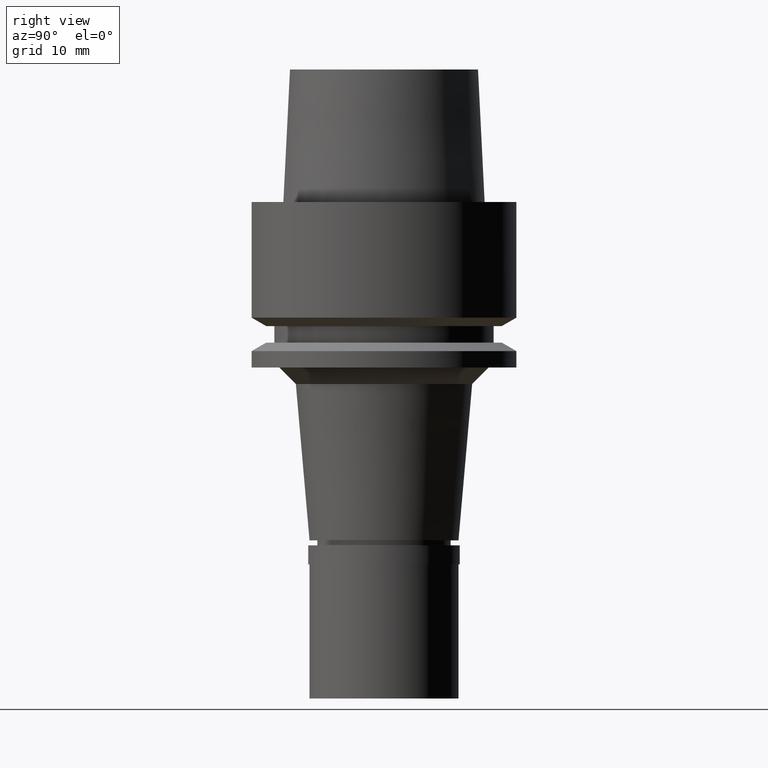
[diagram: clean part render]
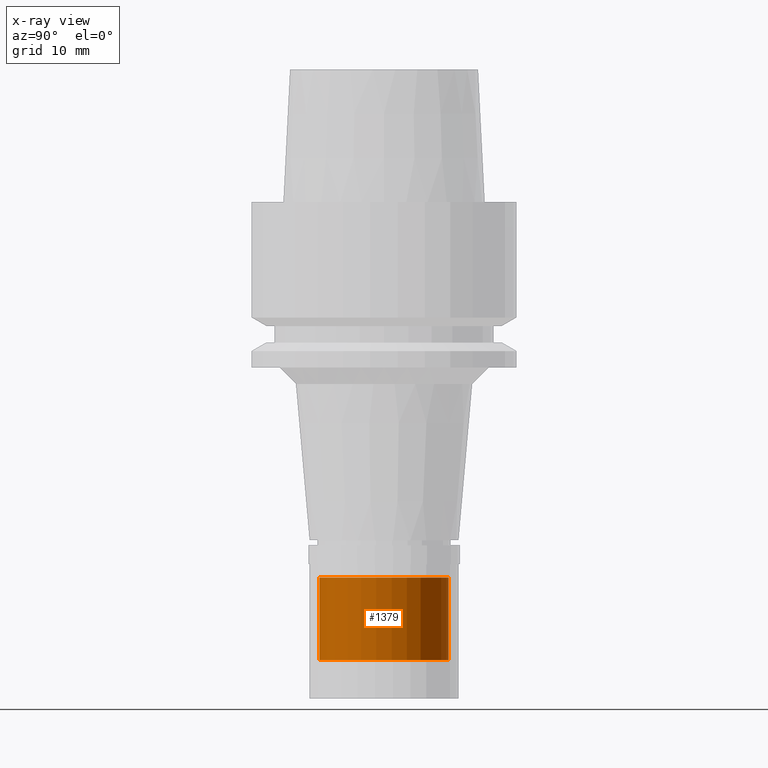
[diagram: x-ray — body ghosted, one internal face saturated and labeled with its STEP entity id]
A machine part, right view, then the same camera in x-ray: the body is ghosted and one INTERNAL B-rep face — a face not visible from any outside direction — is saturated and labeled: STEP entity #1379.
In plain terms, the highlighted cylindrical surface (partial cylindrical patch) has radius 7.8 mm, axis along (0, 0, -1).
Its self-contained STEP definition (entity closure, byte-faithful):
#30 = CIRCLE ( 'NONE', #2075, 7.799999999999999822 ) ;
#63 = AXIS2_PLACEMENT_3D ( 'NONE', #521, #2627, #344 ) ;
#250 = CARTESIAN_POINT ( 'NONE',  ( 0.0000000000000000000, 7.799999999999999822, -55.39999999999999858 ) ) ;
#325 = CARTESIAN_POINT ( 'NONE',  ( 0.0000000000000000000, -7.799999999999999822, -45.40000000000000568 ) ) ;
#340 = DIRECTION ( 'NONE',  ( 0.0000000000000000000, 0.0000000000000000000, -1.000000000000000000 ) ) ;
#344 = DIRECTION ( 'NONE',  ( 0.0000000000000000000, -1.000000000000000000, 0.0000000000000000000 ) ) ;
#372 = DIRECTION ( 'NONE',  ( 0.0000000000000000000, -1.000000000000000000, 0.0000000000000000000 ) ) ;
#387 = EDGE_CURVE ( 'NONE', #1405, #795, #1224, .T. ) ;
#399 = DIRECTION ( 'NONE',  ( 0.0000000000000000000, 0.0000000000000000000, -1.000000000000000000 ) ) ;
#521 = CARTESIAN_POINT ( 'NONE',  ( 0.0000000000000000000, 0.0000000000000000000, -55.39999999999999858 ) ) ;
#582 = CARTESIAN_POINT ( 'NONE',  ( 0.0000000000000000000, -7.799999999999999822, -45.40000000000000568 ) ) ;
#670 = AXIS2_PLACEMENT_3D ( 'NONE', #1827, #399, #372 ) ;
#730 = EDGE_CURVE ( 'NONE', #795, #2525, #1452, .T. ) ;
#795 = VERTEX_POINT ( 'NONE', #2443 ) ;
#974 = ORIENTED_EDGE ( 'NONE', *, *, #1401, .F. ) ;
#1219 = CYLINDRICAL_SURFACE ( 'NONE', #670, 7.799999999999999822 ) ;
#1224 = LINE ( 'NONE', #582, #2323 ) ;
#1273 = CARTESIAN_POINT ( 'NONE',  ( 0.0000000000000000000, 7.799999999999999822, -45.40000000000000568 ) ) ;
#1379 = ADVANCED_FACE ( 'NONE', ( #2238 ), #1219, .T. ) ;
#1401 = EDGE_CURVE ( 'NONE', #1802, #2525, #1865, .T. ) ;
#1405 = VERTEX_POINT ( 'NONE', #325 ) ;
#1452 = CIRCLE ( 'NONE', #63, 7.799999999999999822 ) ;
#1582 = CARTESIAN_POINT ( 'NONE',  ( 0.0000000000000000000, 7.799999999999999822, -45.40000000000000568 ) ) ;
#1802 = VERTEX_POINT ( 'NONE', #1273 ) ;
#1827 = CARTESIAN_POINT ( 'NONE',  ( 0.0000000000000000000, 0.0000000000000000000, 19.57000000000000028 ) ) ;
#1865 = LINE ( 'NONE', #1582, #2199 ) ;
#2072 = EDGE_CURVE ( 'NONE', #1802, #1405, #30, .T. ) ;
#2075 = AXIS2_PLACEMENT_3D ( 'NONE', #2099, #2298, #2281 ) ;
#2099 = CARTESIAN_POINT ( 'NONE',  ( 0.0000000000000000000, 0.0000000000000000000, -45.40000000000000568 ) ) ;
#2138 = ORIENTED_EDGE ( 'NONE', *, *, #387, .T. ) ;
#2199 = VECTOR ( 'NONE', #2450, 1000.000000000000000 ) ;
#2238 = FACE_OUTER_BOUND ( 'NONE', #2531, .T. ) ;
#2281 = DIRECTION ( 'NONE',  ( 0.0000000000000000000, 1.000000000000000000, 0.0000000000000000000 ) ) ;
#2298 = DIRECTION ( 'NONE',  ( 0.0000000000000000000, 0.0000000000000000000, -1.000000000000000000 ) ) ;
#2300 = ORIENTED_EDGE ( 'NONE', *, *, #2072, .T. ) ;
#2310 = ORIENTED_EDGE ( 'NONE', *, *, #730, .T. ) ;
#2323 = VECTOR ( 'NONE', #340, 1000.000000000000000 ) ;
#2443 = CARTESIAN_POINT ( 'NONE',  ( 0.0000000000000000000, -7.799999999999999822, -55.39999999999999858 ) ) ;
#2450 = DIRECTION ( 'NONE',  ( 0.0000000000000000000, 0.0000000000000000000, -1.000000000000000000 ) ) ;
#2525 = VERTEX_POINT ( 'NONE', #250 ) ;
#2531 = EDGE_LOOP ( 'NONE', ( #2300, #2138, #2310, #974 ) ) ;
#2627 = DIRECTION ( 'NONE',  ( 0.0000000000000000000, 0.0000000000000000000, 1.000000000000000000 ) ) ;